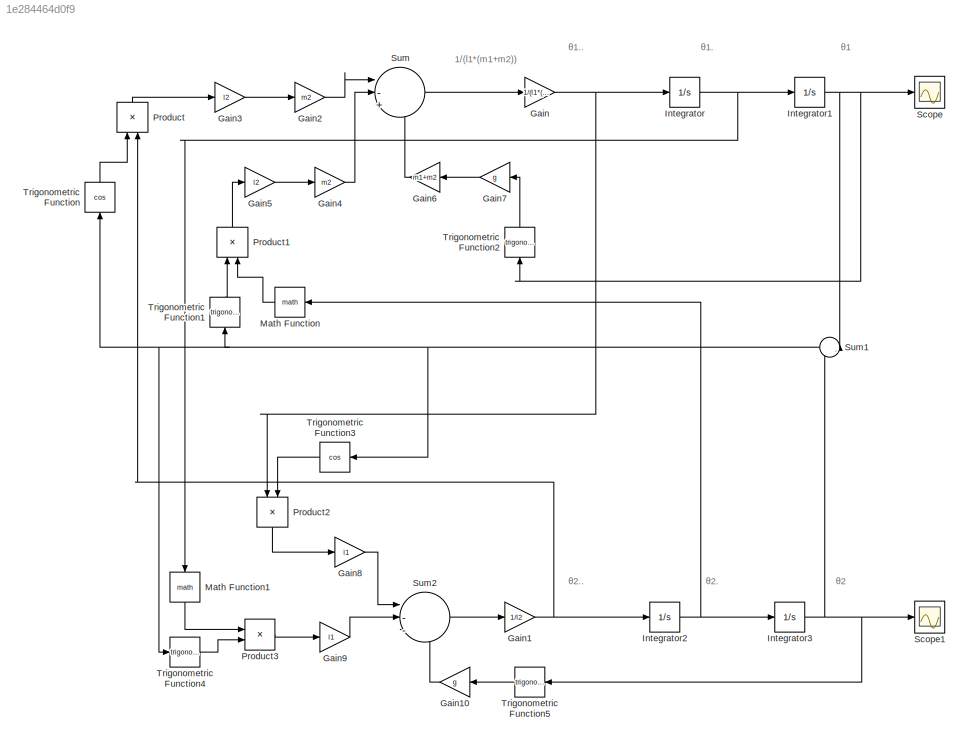
MODEL slx_1e284464d0f9
KIND model
CONFIG AbsTol = auto
CONFIG EnableMultiTasking = off
CONFIG FixedStep = auto
CONFIG InitFcn = m1=0.2;\nl1=0.3;\nm2=0.1;\nl2=0.25;\ng=9.81;
CONFIG MaxStep = auto
CONFIG MinStep = auto
CONFIG RelTol = 1e-3
CONFIG SampleTimeConstraint = Unconstrained
CONFIG SolverName = VariableStepAuto
CONFIG StartTime = 0.0
CONFIG StopTime = 10.0
BLOCK [Gain] Gain
  Gain = 1/(l1*(m1+m2))
BLOCK [Gain] Gain1
  Gain = 1/l2
BLOCK [Gain] Gain10
  Gain = g
  NameLocation = top
BLOCK [Gain] Gain2
  Gain = m2
BLOCK [Gain] Gain3
  Gain = l2
BLOCK [Gain] Gain4
  Gain = m2
BLOCK [Gain] Gain5
  Gain = l2
BLOCK [Gain] Gain6
  Gain = m1+m2
  NameLocation = top
BLOCK [Gain] Gain7
  Gain = g
  NameLocation = top
BLOCK [Gain] Gain8
  Gain = l1
BLOCK [Gain] Gain9
  Gain = l1
BLOCK [Integrator] Integrator
BLOCK [Integrator] Integrator1
BLOCK [Integrator] Integrator2
BLOCK [Integrator] Integrator3
  InitialCondition = 35*(pi/180)
BLOCK [Math] Math Function
  NameLocation = top
BLOCK [Math] Math Function1
  NameLocation = left
BLOCK [Product] Product
  NameLocation = right
BLOCK [Product] Product1
  NameLocation = right
BLOCK [Product] Product2
  NameLocation = left
BLOCK [Product] Product3
BLOCK [Scope] Scope
  Floating = off
  NumInputPorts = 1
  ScopeSpecificationString = Simulink.scopes.TimeScopeBlockCfg('CurrentConfiguration', extmgr.ConfigurationSet(extmgr.Configuration('Core','General UI',true),extmgr.Configuration('Core','Source UI',true),extmgr.Configuration('Sources','WiredSimulink',true),extmgr.Configuration('Visuals','Time Domain',true,'SerializedDisplays',{struct('MinYLimReal','-0.37963','MaxYLimReal','0.39434','YLabelReal','','MinYLimMag','0.00000','MaxY...<+1475ch>
BLOCK [Scope] Scope1
  Floating = off
  NumInputPorts = 1
  ScopeSpecificationString = Simulink.scopes.TimeScopeBlockCfg('CurrentConfiguration', extmgr.ConfigurationSet(extmgr.Configuration('Core','General UI',true),extmgr.Configuration('Core','Source UI',true),extmgr.Configuration('Sources','WiredSimulink',true,'DataLoggingVariableName','ScopeData1'),extmgr.Configuration('Visuals','Time Domain',true,'SerializedDisplays',{struct('MinYLimReal','-0.7365','MaxYLimReal','0.76057','YLabe...<+1505ch>
BLOCK [Sum] Sum
  Inputs = |-+-
BLOCK [Sum] Sum1
  Inputs = |-+
  NameLocation = top
BLOCK [Sum] Sum2
  Inputs = |---
BLOCK [Trigonometry] Trigonometric Function
  NameLocation = right
  Operator = cos
BLOCK [Trigonometry] Trigonometric Function1
  NameLocation = right
BLOCK [Trigonometry] Trigonometric Function2
  NameLocation = right
BLOCK [Trigonometry] Trigonometric Function3
  NameLocation = top
  Operator = cos
BLOCK [Trigonometry] Trigonometric Function4
BLOCK [Trigonometry] Trigonometric Function5
  NameLocation = top
ANNOTATION (root): θ1..
ANNOTATION (root): θ1.
ANNOTATION (root): θ1
ANNOTATION (root): θ2..
ANNOTATION (root): θ2.
ANNOTATION (root): θ2
ANNOTATION (root): 1/(l1*(m1+m2))
LINE Gain10:1 -> Sum2:3
NET Gain1:1 -> Integrator2:1, Product:2
LINE Gain2:1 -> Sum:1
LINE Gain3:1 -> Gain2:1
LINE Gain4:1 -> Sum:2
LINE Gain5:1 -> Gain4:1
LINE Gain6:1 -> Sum:3
LINE Gain7:1 -> Gain6:1
LINE Gain8:1 -> Sum2:1
LINE Gain9:1 -> Sum2:2
NET Gain:1 -> Integrator:1, Product2:1
NET Integrator1:1 -> Scope:1, Sum1:1, Trigonometric Function2:1
NET Integrator2:1 -> Integrator3:1, Math Function:1
NET Integrator3:1 -> Scope1:1, Sum1:2, Trigonometric Function5:1
NET Integrator:1 -> Integrator1:1, Math Function1:1
LINE Math Function1:1 -> Product3:1
LINE Math Function:1 -> Product1:2
LINE Product1:1 -> Gain5:1
LINE Product2:1 -> Gain8:1
LINE Product3:1 -> Gain9:1
LINE Product:1 -> Gain3:1
NET Sum1:1 -> Trigonometric Function1:1, Trigonometric Function3:1, Trigonometric Function4:1, Trigonometric Function:1
LINE Sum2:1 -> Gain1:1
LINE Sum:1 -> Gain:1
LINE Trigonometric Function1:1 -> Product1:1
LINE Trigonometric Function2:1 -> Gain7:1
LINE Trigonometric Function3:1 -> Product2:2
LINE Trigonometric Function4:1 -> Product3:2
LINE Trigonometric Function5:1 -> Gain10:1
LINE Trigonometric Function:1 -> Product:1
note: NET lines group one-source signal fan-out (src -> all destinations, sorted); 1:1 wires keep LINE
